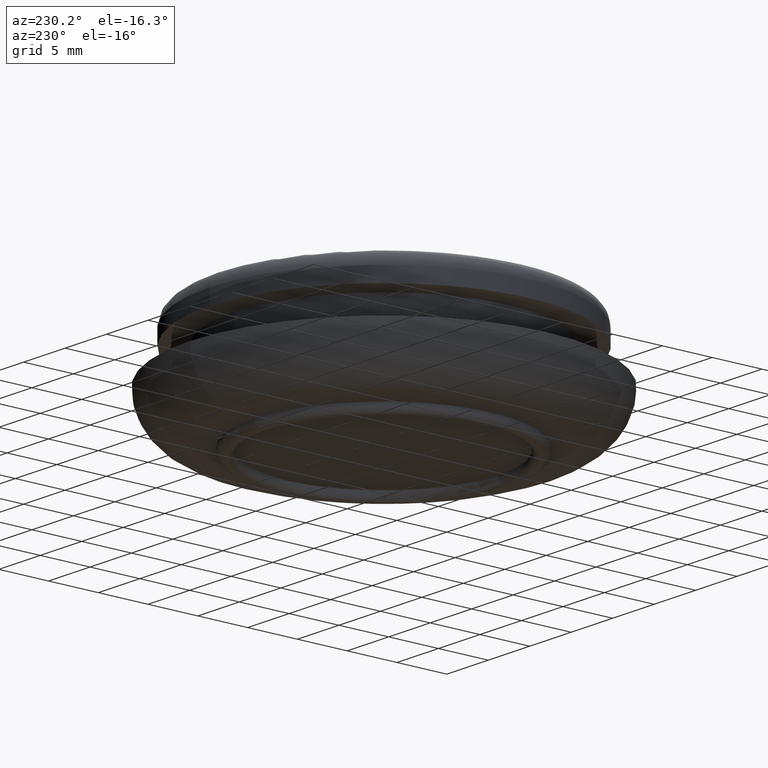
[diagram: clean part render]
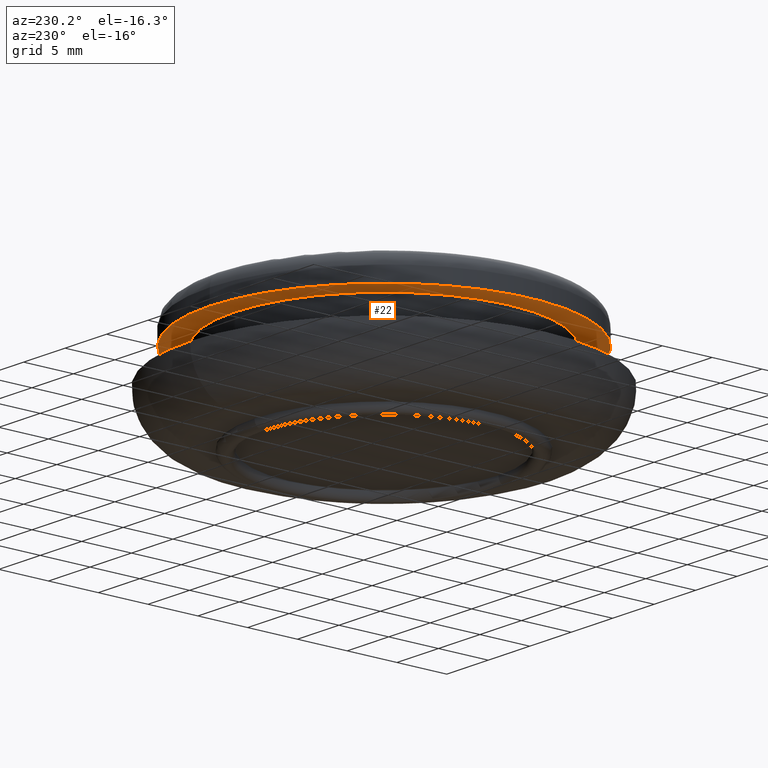
[diagram: same view with one face highlighted and labeled with its STEP entity id]
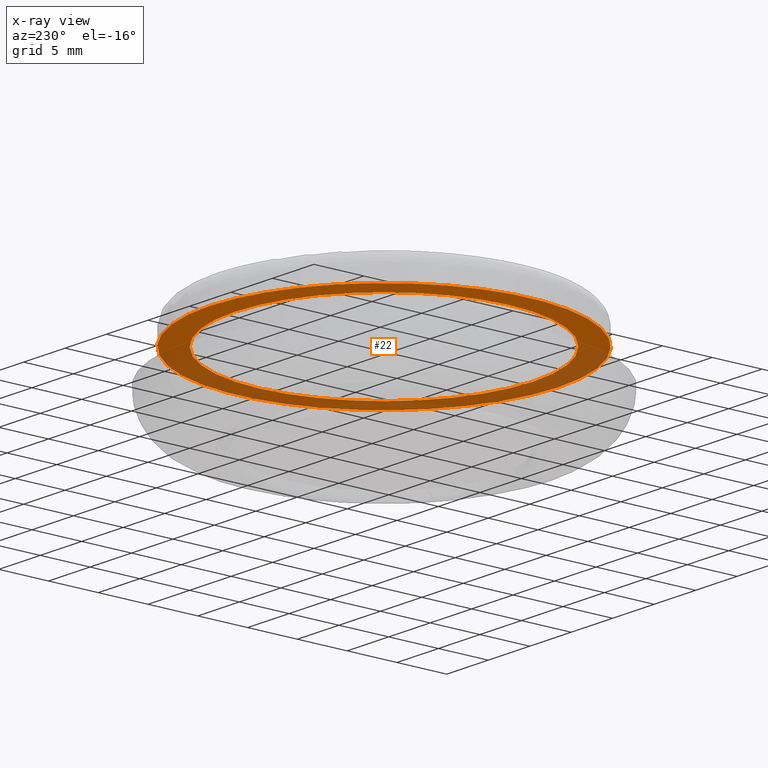
[diagram: x-ray of the same camera — body ghosted, the highlighted face saturated]
A machine part, auxiliary view. The second image highlights one B-rep face of the part: STEP entity #22.
The next image is the same camera in x-ray: the body ghosted, the highlighted face saturated — about 50% of this face is hidden behind the body in this view.
In plain terms, the highlighted planar face has unit normal (0, 0, -1).
Its self-contained STEP definition (entity closure, byte-faithful):
#13 = DIRECTION ( 'NONE',  ( 0.0000000000000000000, -1.000000000000000000, 0.0000000000000000000 ) ) ;
#22 = ADVANCED_FACE ( 'NONE', ( #587, #74 ), #525, .T. ) ;
#37 = AXIS2_PLACEMENT_3D ( 'NONE', #647, #569, #490 ) ;
#39 = EDGE_CURVE ( 'NONE', #359, #298, #55, .T. ) ;
#45 = AXIS2_PLACEMENT_3D ( 'NONE', #164, #150, #148 ) ;
#55 = CIRCLE ( 'NONE', #144, 17.50000000000000000 ) ;
#56 = VERTEX_POINT ( 'NONE', #57 ) ;
#57 = CARTESIAN_POINT ( 'NONE',  ( 0.0000000000000000000, 2.999999999999999100, -15.00000000000000000 ) ) ;
#68 = VERTEX_POINT ( 'NONE', #461 ) ;
#70 = CARTESIAN_POINT ( 'NONE',  ( 0.0000000000000000000, 2.999999999999999100, -17.50000000000000000 ) ) ;
#74 = FACE_OUTER_BOUND ( 'NONE', #351, .T. ) ;
#87 = EDGE_CURVE ( 'NONE', #56, #68, #534, .T. ) ;
#97 = ORIENTED_EDGE ( 'NONE', *, *, #39, .F. ) ;
#110 = DIRECTION ( 'NONE',  ( 0.0000000000000000000, 0.0000000000000000000, -1.000000000000000000 ) ) ;
#144 = AXIS2_PLACEMENT_3D ( 'NONE', #423, #575, #516 ) ;
#148 = DIRECTION ( 'NONE',  ( 0.0000000000000000000, 0.0000000000000000000, -1.000000000000000000 ) ) ;
#150 = DIRECTION ( 'NONE',  ( 0.0000000000000000000, -1.000000000000000000, 0.0000000000000000000 ) ) ;
#164 = CARTESIAN_POINT ( 'NONE',  ( 0.0000000000000000000, 2.999999999999999100, 0.0000000000000000000 ) ) ;
#168 = AXIS2_PLACEMENT_3D ( 'NONE', #399, #13, #110 ) ;
#191 = EDGE_CURVE ( 'NONE', #298, #359, #492, .T. ) ;
#201 = DIRECTION ( 'NONE',  ( 0.0000000000000000000, 0.0000000000000000000, -1.000000000000000000 ) ) ;
#222 = ORIENTED_EDGE ( 'NONE', *, *, #191, .F. ) ;
#283 = DIRECTION ( 'NONE',  ( 0.0000000000000000000, -1.000000000000000000, 0.0000000000000000000 ) ) ;
#298 = VERTEX_POINT ( 'NONE', #340 ) ;
#333 = EDGE_CURVE ( 'NONE', #68, #56, #636, .T. ) ;
#335 = CARTESIAN_POINT ( 'NONE',  ( 0.0000000000000000000, 2.999999999999999100, 0.0000000000000000000 ) ) ;
#340 = CARTESIAN_POINT ( 'NONE',  ( 2.143131898507868200E-015, 2.999999999999999100, 17.50000000000000000 ) ) ;
#343 = EDGE_LOOP ( 'NONE', ( #582, #426 ) ) ;
#351 = EDGE_LOOP ( 'NONE', ( #97, #222 ) ) ;
#359 = VERTEX_POINT ( 'NONE', #70 ) ;
#399 = CARTESIAN_POINT ( 'NONE',  ( 0.0000000000000000000, 2.999999999999999100, 0.0000000000000000000 ) ) ;
#423 = CARTESIAN_POINT ( 'NONE',  ( 0.0000000000000000000, 2.999999999999999100, 0.0000000000000000000 ) ) ;
#426 = ORIENTED_EDGE ( 'NONE', *, *, #333, .T. ) ;
#445 = AXIS2_PLACEMENT_3D ( 'NONE', #335, #283, #201 ) ;
#461 = CARTESIAN_POINT ( 'NONE',  ( 1.836970198721029600E-015, 2.999999999999999100, 15.00000000000000000 ) ) ;
#490 = DIRECTION ( 'NONE',  ( 0.0000000000000000000, 0.0000000000000000000, 1.000000000000000000 ) ) ;
#492 = CIRCLE ( 'NONE', #168, 17.50000000000000000 ) ;
#516 = DIRECTION ( 'NONE',  ( 0.0000000000000000000, 0.0000000000000000000, -1.000000000000000000 ) ) ;
#525 = PLANE ( 'NONE',  #37 ) ;
#534 = CIRCLE ( 'NONE', #445, 15.00000000000000000 ) ;
#569 = DIRECTION ( 'NONE',  ( -0.0000000000000000000, 1.000000000000000000, 0.0000000000000000000 ) ) ;
#575 = DIRECTION ( 'NONE',  ( 0.0000000000000000000, -1.000000000000000000, 0.0000000000000000000 ) ) ;
#582 = ORIENTED_EDGE ( 'NONE', *, *, #87, .T. ) ;
#587 = FACE_BOUND ( 'NONE', #343, .T. ) ;
#636 = CIRCLE ( 'NONE', #45, 15.00000000000000000 ) ;
#647 = CARTESIAN_POINT ( 'NONE',  ( 17.50000000000000000, 3.000000000000000000, 0.0000000000000000000 ) ) ;